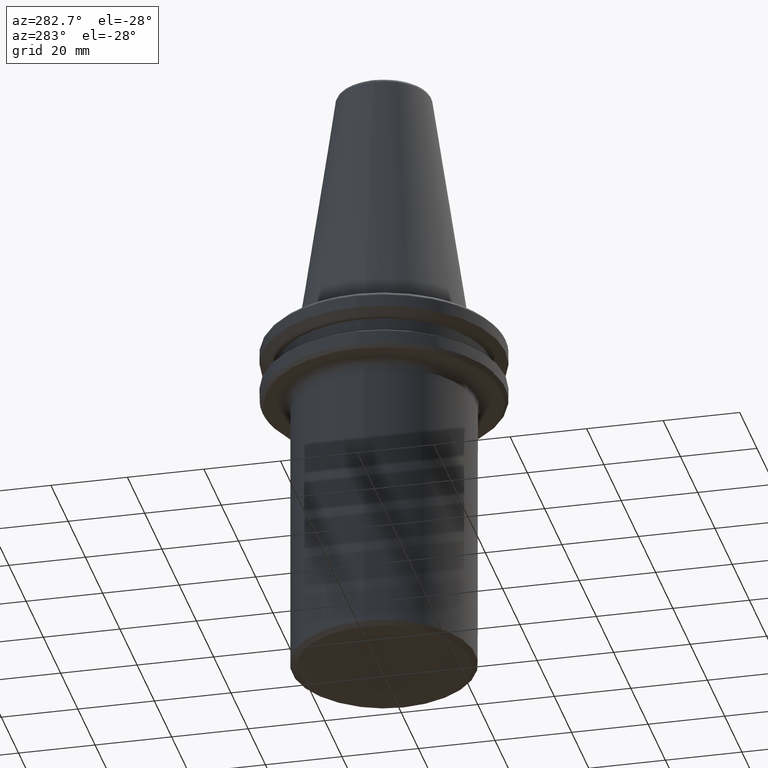
[diagram: clean part render]
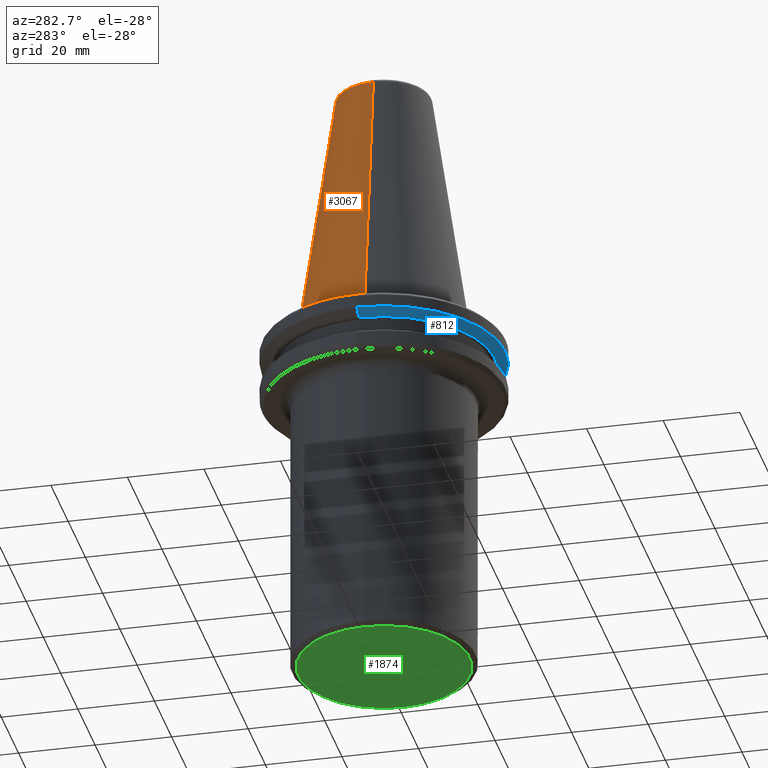
[diagram: same view with three faces highlighted in distinct colors, each labeled with its STEP entity id]
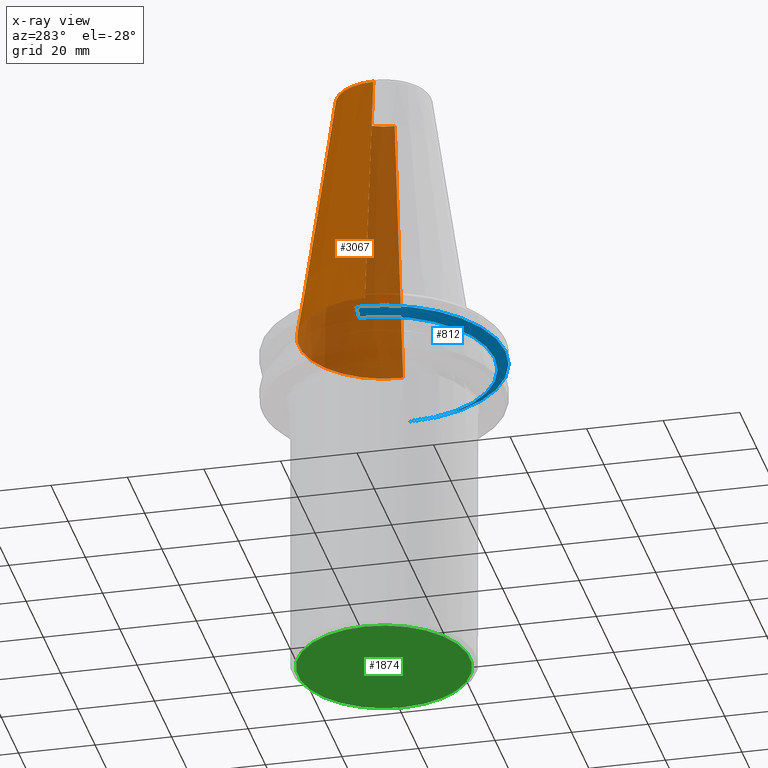
[diagram: x-ray of the same camera — body ghosted, the three highlighted faces saturated]
A machine part, auxiliary view with three faces highlighted in distinct colors.
The next image is the same camera in x-ray (body ghosted, the three faces saturated) — at least one of them is partly hidden behind the body in this view.
Their STEP definitions:

[orange] entity #3067 — the highlighted conical surface has half-angle 8.297 deg.
#46 = AXIS2_PLACEMENT_3D ( 'NONE', #3187, #2546, #3206 ) ;
#108 = ORIENTED_EDGE ( 'NONE', *, *, #677, .F. ) ;
#443 = LINE ( 'NONE', #827, #603 ) ;
#593 = DIRECTION ( 'NONE',  ( -1.000000000000000000, 0.0000000000000000000, 0.0000000000000000000 ) ) ;
#599 = DIRECTION ( 'NONE',  ( 0.0000000000000000000, 0.0000000000000000000, -1.000000000000000000 ) ) ;
#603 = VECTOR ( 'NONE', #1893, 1000.000000000000000 ) ;
#604 = CARTESIAN_POINT ( 'NONE',  ( 0.0000000000000000000, 0.0000000000000000000, 67.54430822726730800 ) ) ;
#629 = DIRECTION ( 'NONE',  ( 1.000000000000000000, 0.0000000000000000000, 9.822541477422708000E-017 ) ) ;
#677 = EDGE_CURVE ( 'NONE', #3151, #1890, #1578, .T. ) ;
#747 = FACE_OUTER_BOUND ( 'NONE', #1849, .T. ) ;
#827 = CARTESIAN_POINT ( 'NONE',  ( 22.22500000000000500, 2.721777511104993200E-015, -2.775557561562891400E-014 ) ) ;
#833 = DIRECTION ( 'NONE',  ( -0.1443082272673070200, 0.0000000000000000000, -0.9895327864921743500 ) ) ;
#844 = CARTESIAN_POINT ( 'NONE',  ( 0.0000000000000000000, 0.0000000000000000000, 0.0000000000000000000 ) ) ;
#1025 = EDGE_CURVE ( 'NONE', #1890, #1722, #1069, .T. ) ;
#1043 = EDGE_CURVE ( 'NONE', #1784, #1722, #443, .T. ) ;
#1069 = CIRCLE ( 'NONE', #1646, 22.22500000000000500 ) ;
#1146 = CARTESIAN_POINT ( 'NONE',  ( -22.22500000000000100, 0.0000000000000000000, 0.0000000000000000000 ) ) ;
#1228 = CARTESIAN_POINT ( 'NONE',  ( -22.22500000000000500, 0.0000000000000000000, -2.775557561562891400E-014 ) ) ;
#1244 = ORIENTED_EDGE ( 'NONE', *, *, #2103, .T. ) ;
#1578 = LINE ( 'NONE', #1228, #2599 ) ;
#1646 = AXIS2_PLACEMENT_3D ( 'NONE', #844, #2025, #629 ) ;
#1722 = VERTEX_POINT ( 'NONE', #3218 ) ;
#1784 = VERTEX_POINT ( 'NONE', #1922 ) ;
#1849 = EDGE_LOOP ( 'NONE', ( #1244, #2917, #3139, #108 ) ) ;
#1890 = VERTEX_POINT ( 'NONE', #1146 ) ;
#1893 = DIRECTION ( 'NONE',  ( 0.1443082272673070200, 1.767266086135363300E-017, -0.9895327864921743500 ) ) ;
#1922 = CARTESIAN_POINT ( 'NONE',  ( 12.37469537611110800, 2.118620309691397300E-015, 67.54430822726730800 ) ) ;
#2025 = DIRECTION ( 'NONE',  ( -0.0000000000000000000, -0.0000000000000000000, -1.000000000000000000 ) ) ;
#2103 = EDGE_CURVE ( 'NONE', #3151, #1784, #2258, .T. ) ;
#2258 = CIRCLE ( 'NONE', #2667, 12.37469537611110800 ) ;
#2546 = DIRECTION ( 'NONE',  ( 0.0000000000000000000, 0.0000000000000000000, -1.000000000000000000 ) ) ;
#2599 = VECTOR ( 'NONE', #833, 1000.000000000000000 ) ;
#2667 = AXIS2_PLACEMENT_3D ( 'NONE', #604, #599, #593 ) ;
#2856 = CARTESIAN_POINT ( 'NONE',  ( -12.37469537611110800, 0.0000000000000000000, 67.54430822726730800 ) ) ;
#2917 = ORIENTED_EDGE ( 'NONE', *, *, #1043, .T. ) ;
#2969 = CONICAL_SURFACE ( 'NONE', #46, 22.22500000000000500, 0.1448138465474190200 ) ;
#3067 = ADVANCED_FACE ( 'NONE', ( #747 ), #2969, .T. ) ;
#3139 = ORIENTED_EDGE ( 'NONE', *, *, #1025, .F. ) ;
#3151 = VERTEX_POINT ( 'NONE', #2856 ) ;
#3187 = CARTESIAN_POINT ( 'NONE',  ( 0.0000000000000000000, 0.0000000000000000000, -2.775557561562891400E-014 ) ) ;
#3206 = DIRECTION ( 'NONE',  ( -1.000000000000000000, 0.0000000000000000000, 0.0000000000000000000 ) ) ;
#3218 = CARTESIAN_POINT ( 'NONE',  ( 22.22500000000000100, 2.721777511104992800E-015, 0.0000000000000000000 ) ) ;

[blue] entity #812 — the highlighted conical surface has half-angle 60 deg.
#125 = VERTEX_POINT ( 'NONE', #1737 ) ;
#195 = AXIS2_PLACEMENT_3D ( 'NONE', #526, #533, #506 ) ;
#233 = CARTESIAN_POINT ( 'NONE',  ( -31.75000000000000000, 3.888253587292846500E-015, -7.578163357943284800 ) ) ;
#263 = AXIS2_PLACEMENT_3D ( 'NONE', #347, #342, #338 ) ;
#284 = LINE ( 'NONE', #233, #1656 ) ;
#319 = VERTEX_POINT ( 'NONE', #2816 ) ;
#330 = ORIENTED_EDGE ( 'NONE', *, *, #465, .T. ) ;
#338 = DIRECTION ( 'NONE',  ( 1.000000000000000000, 0.0000000000000000000, 0.0000000000000000000 ) ) ;
#342 = DIRECTION ( 'NONE',  ( -0.0000000000000000000, -0.0000000000000000000, -1.000000000000000000 ) ) ;
#347 = CARTESIAN_POINT ( 'NONE',  ( 0.0000000000000000000, 0.0000000000000000000, -7.578163357943284800 ) ) ;
#433 = VERTEX_POINT ( 'NONE', #1416 ) ;
#465 = EDGE_CURVE ( 'NONE', #125, #1101, #3016, .T. ) ;
#506 = DIRECTION ( 'NONE',  ( 1.000000000000000000, 0.0000000000000000000, 0.0000000000000000000 ) ) ;
#526 = CARTESIAN_POINT ( 'NONE',  ( 0.0000000000000000000, 0.0000000000000000000, -7.578163357943284800 ) ) ;
#533 = DIRECTION ( 'NONE',  ( 0.0000000000000000000, -0.0000000000000000000, 1.000000000000000000 ) ) ;
#812 = ADVANCED_FACE ( 'NONE', ( #3201 ), #1300, .T. ) ;
#853 = EDGE_CURVE ( 'NONE', #319, #433, #1212, .T. ) ;
#1101 = VERTEX_POINT ( 'NONE', #2382 ) ;
#1125 = LINE ( 'NONE', #2607, #1515 ) ;
#1170 = EDGE_CURVE ( 'NONE', #125, #433, #284, .T. ) ;
#1212 = CIRCLE ( 'NONE', #263, 31.75000000000000000 ) ;
#1300 = CONICAL_SURFACE ( 'NONE', #195, 31.75000000000000000, 1.047197551196599200 ) ;
#1357 = ORIENTED_EDGE ( 'NONE', *, *, #1710, .T. ) ;
#1416 = CARTESIAN_POINT ( 'NONE',  ( -31.75000000000000000, 3.888253587292846500E-015, -7.578163357943284800 ) ) ;
#1417 = DIRECTION ( 'NONE',  ( 0.8660254037844393700, 0.0000000000000000000, 0.4999999999999987200 ) ) ;
#1515 = VECTOR ( 'NONE', #1417, 1000.000000000000000 ) ;
#1533 = DIRECTION ( 'NONE',  ( -0.8660254037844393700, 1.060575238724907800E-016, 0.4999999999999987200 ) ) ;
#1631 = DIRECTION ( 'NONE',  ( 1.000000000000000000, 0.0000000000000000000, 0.0000000000000000000 ) ) ;
#1635 = DIRECTION ( 'NONE',  ( 0.0000000000000000000, -0.0000000000000000000, 1.000000000000000000 ) ) ;
#1647 = CARTESIAN_POINT ( 'NONE',  ( 0.0000000000000000000, 0.0000000000000000000, -9.200000000000001100 ) ) ;
#1656 = VECTOR ( 'NONE', #1533, 1000.000000000000000 ) ;
#1693 = AXIS2_PLACEMENT_3D ( 'NONE', #1647, #1635, #1631 ) ;
#1710 = EDGE_CURVE ( 'NONE', #1101, #319, #1125, .T. ) ;
#1737 = CARTESIAN_POINT ( 'NONE',  ( -28.94089653438085800, 3.716245608910635500E-015, -9.200000000000001100 ) ) ;
#1937 = EDGE_LOOP ( 'NONE', ( #2302, #330, #1357, #1989 ) ) ;
#1989 = ORIENTED_EDGE ( 'NONE', *, *, #853, .T. ) ;
#2302 = ORIENTED_EDGE ( 'NONE', *, *, #1170, .F. ) ;
#2382 = CARTESIAN_POINT ( 'NONE',  ( 28.94089653438085800, 0.0000000000000000000, -9.200000000000001100 ) ) ;
#2607 = CARTESIAN_POINT ( 'NONE',  ( 31.75000000000000000, 0.0000000000000000000, -7.578163357943284800 ) ) ;
#2816 = CARTESIAN_POINT ( 'NONE',  ( 31.75000000000000000, 0.0000000000000000000, -7.578163357943284800 ) ) ;
#3016 = CIRCLE ( 'NONE', #1693, 28.94089653438085800 ) ;
#3201 = FACE_OUTER_BOUND ( 'NONE', #1937, .T. ) ;

[green] entity #1874 — the highlighted planar face has unit normal (0, 0, 1).
#258 = DIRECTION ( 'NONE',  ( 1.000000000000000000, 0.0000000000000000000, 0.0000000000000000000 ) ) ;
#259 = DIRECTION ( 'NONE',  ( 0.0000000000000000000, -0.0000000000000000000, 1.000000000000000000 ) ) ;
#264 = CARTESIAN_POINT ( 'NONE',  ( 0.0000000000000000000, 0.0000000000000000000, -95.00000000000000000 ) ) ;
#384 = VERTEX_POINT ( 'NONE', #2709 ) ;
#439 = EDGE_CURVE ( 'NONE', #384, #616, #3180, .T. ) ;
#616 = VERTEX_POINT ( 'NONE', #805 ) ;
#642 = AXIS2_PLACEMENT_3D ( 'NONE', #2547, #2545, #2133 ) ;
#805 = CARTESIAN_POINT ( 'NONE',  ( -22.50000000000000000, 2.847303808017596100E-015, -95.00000000000000000 ) ) ;
#809 = ORIENTED_EDGE ( 'NONE', *, *, #439, .F. ) ;
#886 = EDGE_CURVE ( 'NONE', #616, #384, #3203, .T. ) ;
#939 = AXIS2_PLACEMENT_3D ( 'NONE', #264, #259, #258 ) ;
#1089 = AXIS2_PLACEMENT_3D ( 'NONE', #1203, #1158, #1154 ) ;
#1154 = DIRECTION ( 'NONE',  ( 1.000000000000000000, 0.0000000000000000000, -0.0000000000000000000 ) ) ;
#1158 = DIRECTION ( 'NONE',  ( 0.0000000000000000000, 0.0000000000000000000, 1.000000000000000000 ) ) ;
#1184 = PLANE ( 'NONE',  #1089 ) ;
#1203 = CARTESIAN_POINT ( 'NONE',  ( -22.50000000000000000, 0.0000000000000000000, -95.00000000000000000 ) ) ;
#1874 = ADVANCED_FACE ( 'NONE', ( #2335 ), #1184, .F. ) ;
#1895 = ORIENTED_EDGE ( 'NONE', *, *, #886, .F. ) ;
#2133 = DIRECTION ( 'NONE',  ( 1.000000000000000000, 0.0000000000000000000, 0.0000000000000000000 ) ) ;
#2162 = EDGE_LOOP ( 'NONE', ( #809, #1895 ) ) ;
#2335 = FACE_OUTER_BOUND ( 'NONE', #2162, .T. ) ;
#2545 = DIRECTION ( 'NONE',  ( 0.0000000000000000000, -0.0000000000000000000, 1.000000000000000000 ) ) ;
#2547 = CARTESIAN_POINT ( 'NONE',  ( 0.0000000000000000000, 0.0000000000000000000, -95.00000000000000000 ) ) ;
#2709 = CARTESIAN_POINT ( 'NONE',  ( 22.50000000000000000, 0.0000000000000000000, -95.00000000000000000 ) ) ;
#3180 = CIRCLE ( 'NONE', #642, 22.50000000000000000 ) ;
#3203 = CIRCLE ( 'NONE', #939, 22.50000000000000000 ) ;